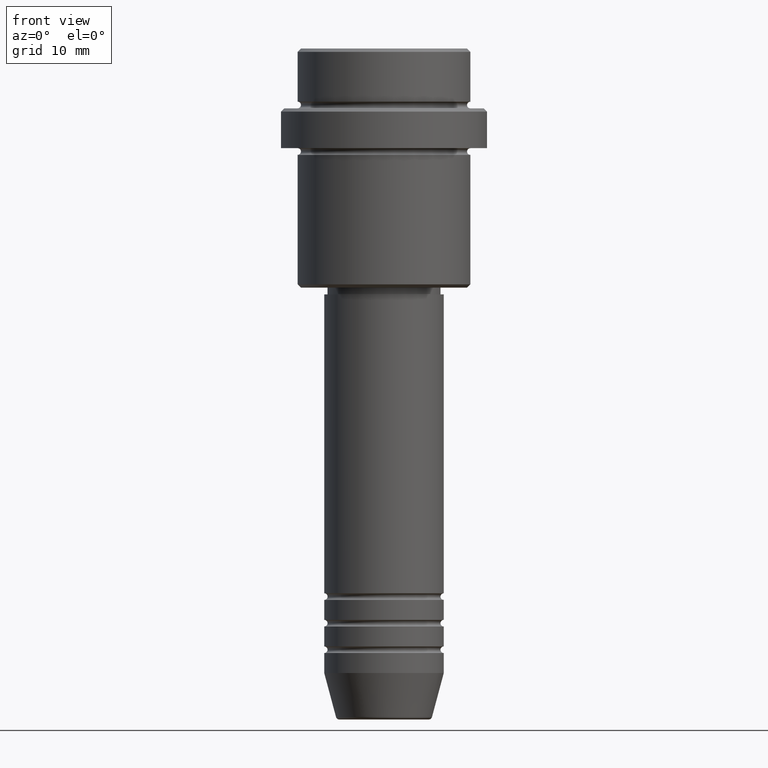
[diagram: clean part render]
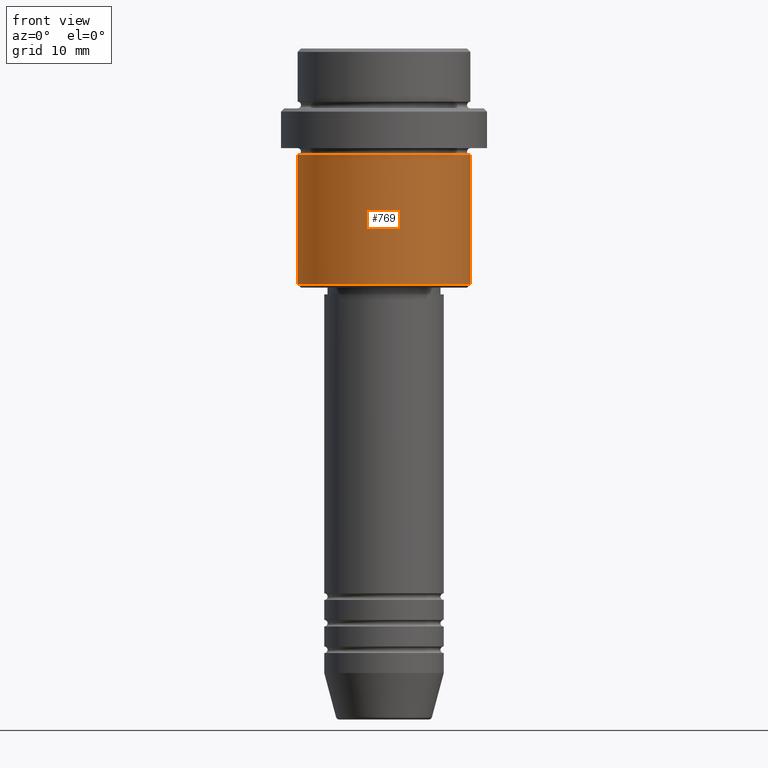
[diagram: same view with one face highlighted and labeled with its STEP entity id]
A machine part, front view. The second image highlights one B-rep face of the part: STEP entity #769.
In plain terms, the highlighted cylindrical surface (partial cylindrical patch) has radius 13 mm, axis along (-0, -0, 1).
Its self-contained STEP definition (entity closure, byte-faithful):
#77 = CARTESIAN_POINT ( 'NONE',  ( 13.00000000000000000, 0.000000000000000000, -35.50000000000000711 ) ) ;
#188 = DIRECTION ( 'NONE',  ( -0.000000000000000000, -0.000000000000000000, 1.000000000000000000 ) ) ;
#234 = DIRECTION ( 'NONE',  ( 1.000000000000000000, 0.000000000000000000, 0.000000000000000000 ) ) ;
#250 = VERTEX_POINT ( 'NONE', #77 ) ;
#275 = EDGE_CURVE ( 'NONE', #348, #821, #1368, .T. ) ;
#310 = VECTOR ( 'NONE', #1155, 1000.000000000000000 ) ;
#331 = DIRECTION ( 'NONE',  ( -0.000000000000000000, -0.000000000000000000, 1.000000000000000000 ) ) ;
#344 = CARTESIAN_POINT ( 'NONE',  ( 13.00000000000000000, 0.000000000000000000, 0.000000000000000000 ) ) ;
#348 = VERTEX_POINT ( 'NONE', #523 ) ;
#367 = CARTESIAN_POINT ( 'NONE',  ( 0.000000000000000000, 0.000000000000000000, -35.50000000000000711 ) ) ;
#401 = AXIS2_PLACEMENT_3D ( 'NONE', #443, #331, #1069 ) ;
#441 = VERTEX_POINT ( 'NONE', #985 ) ;
#443 = CARTESIAN_POINT ( 'NONE',  ( 0.000000000000000000, 0.000000000000000000, -16.00000000000000000 ) ) ;
#485 = FACE_OUTER_BOUND ( 'NONE', #527, .T. ) ;
#499 = EDGE_CURVE ( 'NONE', #821, #441, #856, .T. ) ;
#523 = CARTESIAN_POINT ( 'NONE',  ( -13.00000000000000000, 1.592040838891559095E-15, -35.50000000000000711 ) ) ;
#527 = EDGE_LOOP ( 'NONE', ( #1390, #551, #791, #1080 ) ) ;
#545 = DIRECTION ( 'NONE',  ( -0.000000000000000000, -0.000000000000000000, 1.000000000000000000 ) ) ;
#551 = ORIENTED_EDGE ( 'NONE', *, *, #1373, .T. ) ;
#769 = ADVANCED_FACE ( 'NONE', ( #485 ), #923, .T. ) ;
#783 = CIRCLE ( 'NONE', #1223, 13.00000000000000000 ) ;
#791 = ORIENTED_EDGE ( 'NONE', *, *, #1301, .T. ) ;
#821 = VERTEX_POINT ( 'NONE', #1206 ) ;
#823 = DIRECTION ( 'NONE',  ( -0.000000000000000000, -0.000000000000000000, 1.000000000000000000 ) ) ;
#856 = CIRCLE ( 'NONE', #401, 13.00000000000000000 ) ;
#923 = CYLINDRICAL_SURFACE ( 'NONE', #1033, 13.00000000000000000 ) ;
#985 = CARTESIAN_POINT ( 'NONE',  ( 13.00000000000000000, 0.000000000000000000, -16.00000000000000000 ) ) ;
#1033 = AXIS2_PLACEMENT_3D ( 'NONE', #1366, #823, #234 ) ;
#1045 = CARTESIAN_POINT ( 'NONE',  ( -13.00000000000000000, 1.592040838891559095E-15, 0.000000000000000000 ) ) ;
#1069 = DIRECTION ( 'NONE',  ( 1.000000000000000000, 0.000000000000000000, 0.000000000000000000 ) ) ;
#1080 = ORIENTED_EDGE ( 'NONE', *, *, #499, .F. ) ;
#1106 = VECTOR ( 'NONE', #545, 1000.000000000000000 ) ;
#1155 = DIRECTION ( 'NONE',  ( -0.000000000000000000, -0.000000000000000000, 1.000000000000000000 ) ) ;
#1206 = CARTESIAN_POINT ( 'NONE',  ( -13.00000000000000000, 1.592040838891559095E-15, -16.00000000000000000 ) ) ;
#1223 = AXIS2_PLACEMENT_3D ( 'NONE', #367, #188, #1337 ) ;
#1301 = EDGE_CURVE ( 'NONE', #250, #441, #1321, .T. ) ;
#1321 = LINE ( 'NONE', #344, #1106 ) ;
#1337 = DIRECTION ( 'NONE',  ( -1.000000000000000000, 0.000000000000000000, 0.000000000000000000 ) ) ;
#1366 = CARTESIAN_POINT ( 'NONE',  ( 0.000000000000000000, 0.000000000000000000, 0.000000000000000000 ) ) ;
#1368 = LINE ( 'NONE', #1045, #310 ) ;
#1373 = EDGE_CURVE ( 'NONE', #348, #250, #783, .T. ) ;
#1390 = ORIENTED_EDGE ( 'NONE', *, *, #275, .F. ) ;